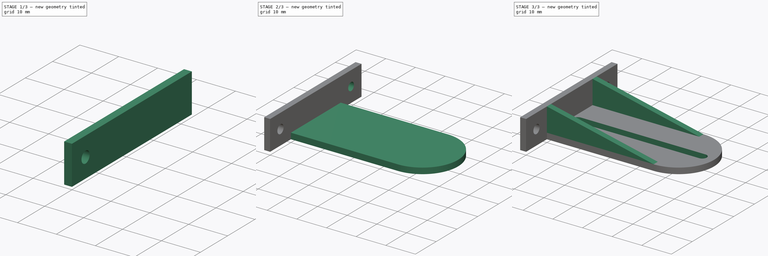
[diagram: build sequence overview — one tinted view per stage of 3, left to right]
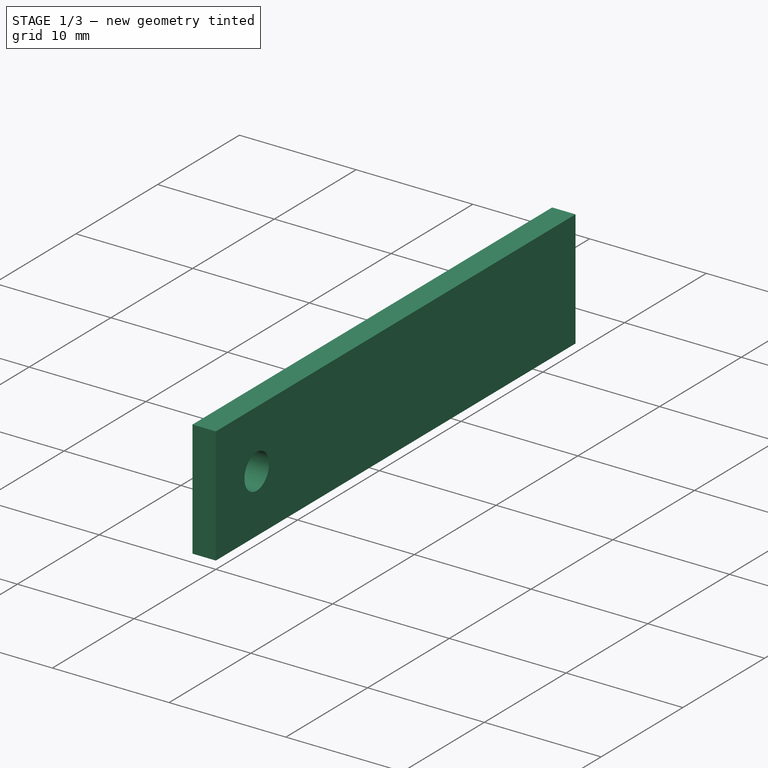
[diagram: stage 1 of 3 — iso view after this stage's code; geometry added in this stage tinted green]
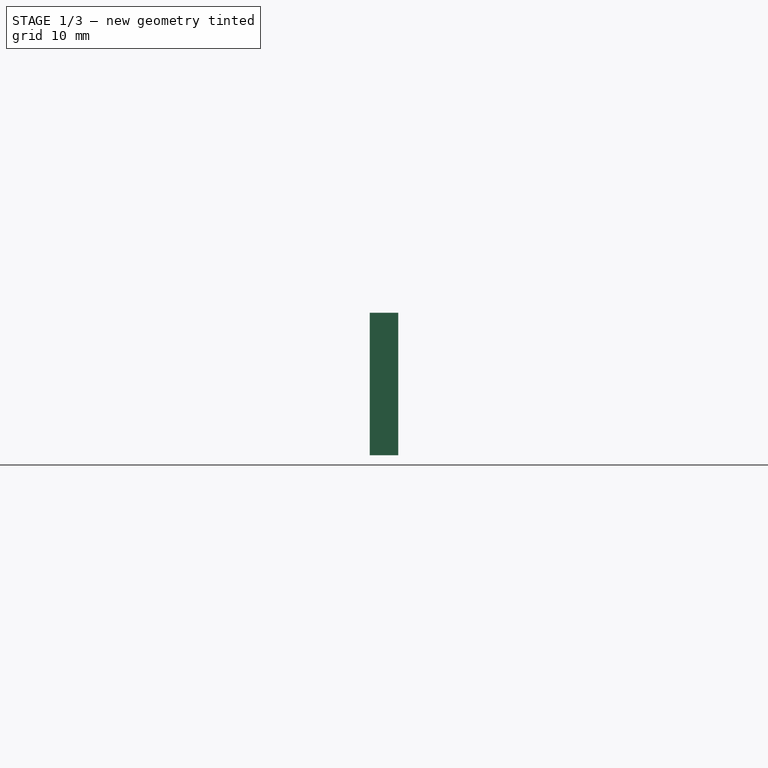
[diagram: stage 1 of 3 — front view after this stage's code; geometry added in this stage tinted green]
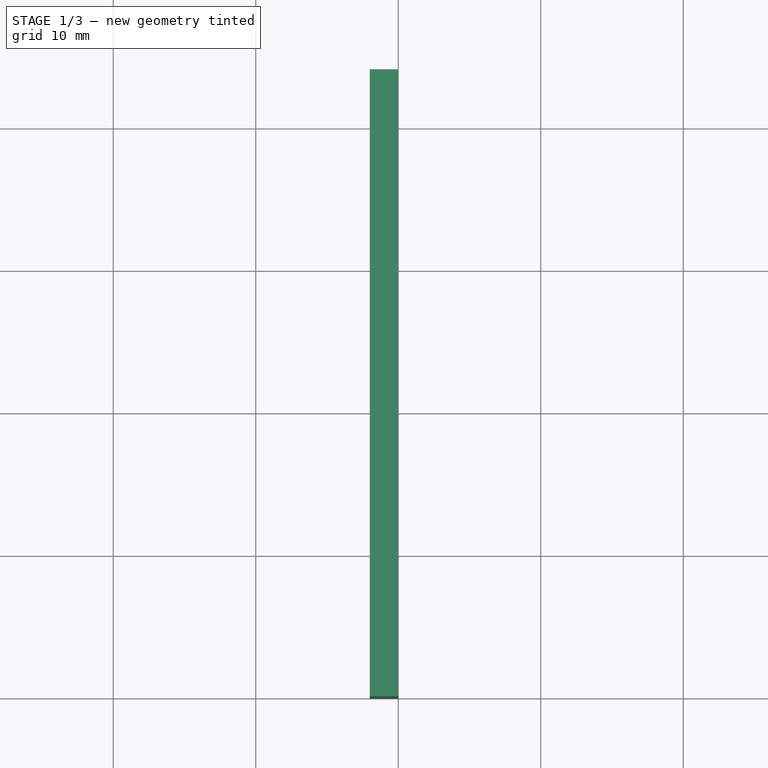
[diagram: stage 1 of 3 — top view after this stage's code; geometry added in this stage tinted green]
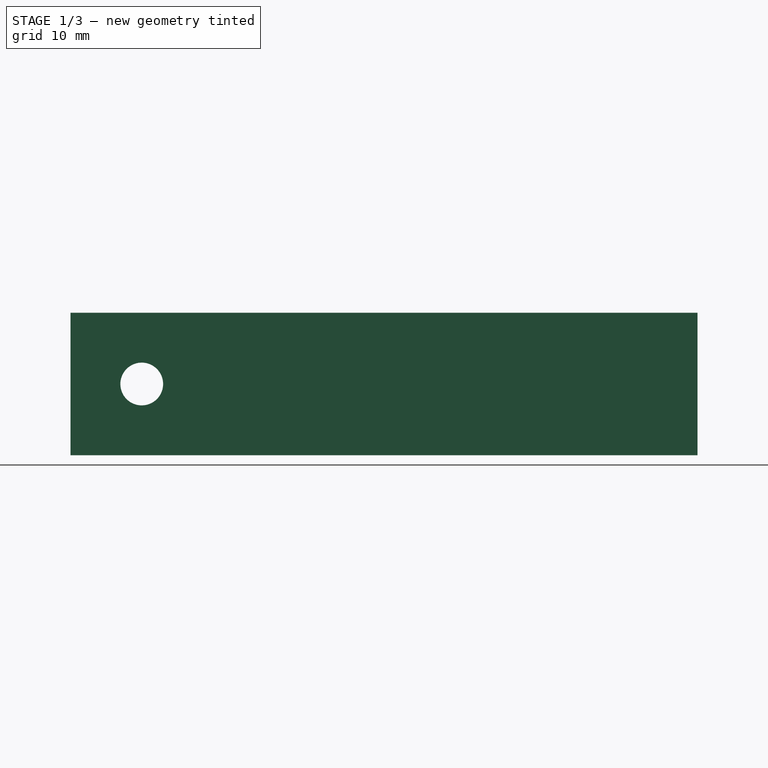
[diagram: stage 1 of 3 — right view after this stage's code; geometry added in this stage tinted green]
FCSTD DOCUMENT  (FreeCAD 0.17R13541 (Git))
Label: PowerBottomBracket
License: All rights reserved
LicenseURL: http://en.wikipedia.org/wiki/All_rights_reserved
objects: Sketcher::SketchObject×8, PartDesign::Pad×4, PartDesign::Pocket×4, PartDesign::Body×1
note: 25 computed .brp shape members not serialized (recipe doc carries the construction recipe); baked Part::Feature solids carry a one-line shape summary decoded from their .brp

FEATURE [Sketcher::SketchObject] Sketch
  MapMode = 5
  Placement = pos=(0,0,0) rot=(0.57735,0.57735,0.57735;2.0944rad)
  Support = -> [YZ_Plane001]
  sketch-geometry (4):
    g0: LineSegment StartX=12 StartY=10 StartZ=0 EndX=-10 EndY=10 EndZ=0
    g1: LineSegment StartX=-10 StartY=10 StartZ=0 EndX=-10 EndY=0 EndZ=0
    g2: LineSegment StartX=-10 StartY=0 StartZ=0 EndX=12 EndY=0 EndZ=0
    g3: LineSegment StartX=12 StartY=0 StartZ=0 EndX=12 EndY=10 EndZ=0
  constraints (11):
    c: Coincident(g0,g1)
    c: Coincident(g1,g2)
    c: Coincident(g2,g3)
    c: Coincident(g3,g0)
    c: Horizontal(g0)
    c: Horizontal(g2)
    c: Vertical(g1)
    c: Vertical(g3)
    c: Distance(g0) = 22
    c: DistanceX(g1) = -10
    c: DistanceY(g1) = 0
FEATURE [PartDesign::Pad] Pad  label="Rail Mount 1"
  Length = 2
  Length2 = 100
  Placement = pos=(0,0,0) rot=(0.57735,0.57735,0.57735;2.0944rad)
  Profile = -> Sketch
  Reversed = true
  Type = 0
FEATURE [Sketcher::SketchObject] Sketch001
  MapMode = 5
  Placement = pos=(0,0,0) rot=(0.57735,0.57735,0.57735;2.0944rad)
  Support = -> [YZ_Plane001]
  sketch-geometry (3):
    g0: LineSegment [constr] StartX=0 StartY=0 StartZ=0 EndX=-10 EndY=10 EndZ=0
    g1: LineSegment [constr] StartX=0 StartY=10 StartZ=0 EndX=-10 EndY=0 EndZ=0
    g2: Circle CenterX=-5 CenterY=5 CenterZ=0 NormalX=0 NormalY=0 NormalZ=1 AngleXU=0 Radius=1.5
  constraints (11):
    c: DistanceX(g1) = 0
    c: DistanceY(g1) = 10
    c: DistanceX(g0) = 0
    c: DistanceY(g0) = 0
    c: DistanceX(g0) = -10
    c: DistanceY(g0) = 10
    c: PointOnObject(g2,g0)
    c: PointOnObject(g2,g1)
    c: Radius(g2) = 1.5
    c: DistanceX(g1) = -10
    c: DistanceY(g1) = 0
FEATURE [PartDesign::Pocket] Pocket  label="Rail Mount hole 1"
  BaseFeature = -> Pad
  Length = 7
  Length2 = 106
  Midplane = true
  Placement = pos=(0,0,0) rot=(0.57735,0.57735,0.57735;2.0944rad)
  Profile = -> Sketch001
  Type = 1
FEATURE [Sketcher::SketchObject] Sketch002
  MapMode = 5
  Placement = pos=(0,0,0) rot=(0.57735,0.57735,0.57735;2.0944rad)
  Support = -> [YZ_Plane001]
  sketch-geometry (4):
    g0: LineSegment StartX=34 StartY=10 StartZ=0 EndX=12 EndY=10 EndZ=0
    g1: LineSegment StartX=12 StartY=10 StartZ=0 EndX=12 EndY=0 EndZ=0
    g2: LineSegment StartX=12 StartY=0 StartZ=0 EndX=34 EndY=0 EndZ=0
    g3: LineSegment StartX=34 StartY=0 StartZ=0 EndX=34 EndY=10 EndZ=0
  constraints (11):
    c: Coincident(g0,g1)
    c: Coincident(g1,g2)
    c: Coincident(g2,g3)
    c: Coincident(g3,g0)
    c: Horizontal(g0)
    c: Horizontal(g2)
    c: Vertical(g1)
    c: Vertical(g3)
    c: Distance(g0) = 22
    c: DistanceX(g1) = 12
    c: DistanceY(g1) = 0
FEATURE [PartDesign::Pad] Pad001  label="Rail Mount 2"
  BaseFeature = -> Pocket
  Length = 2
  Length2 = 100
  Placement = pos=(0,0,0) rot=(0.57735,0.57735,0.57735;2.0944rad)
  Profile = -> Sketch002
  Reversed = true
  Type = 0
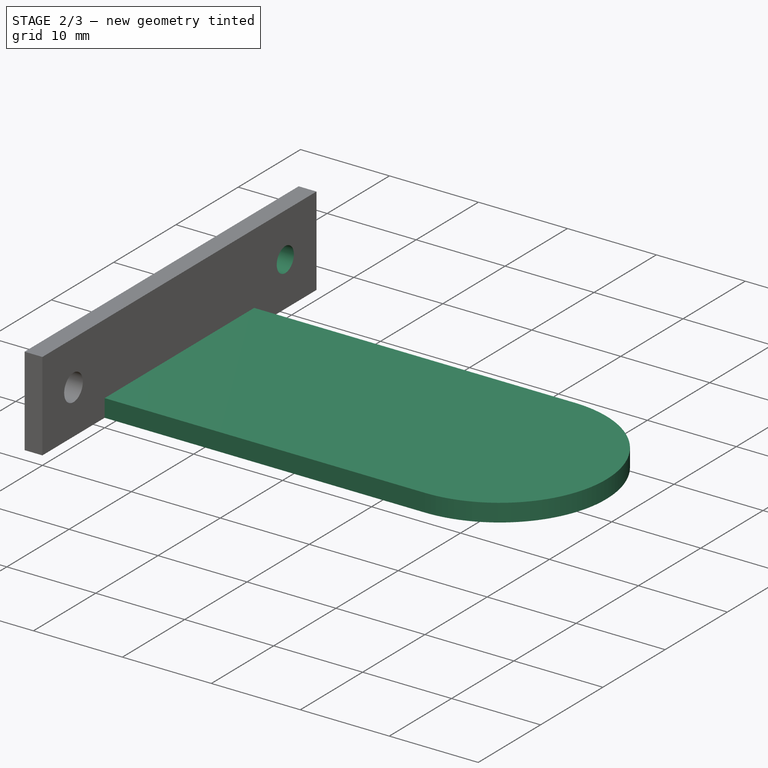
[diagram: stage 2 of 3 — iso view after this stage's code; geometry added in this stage tinted green]
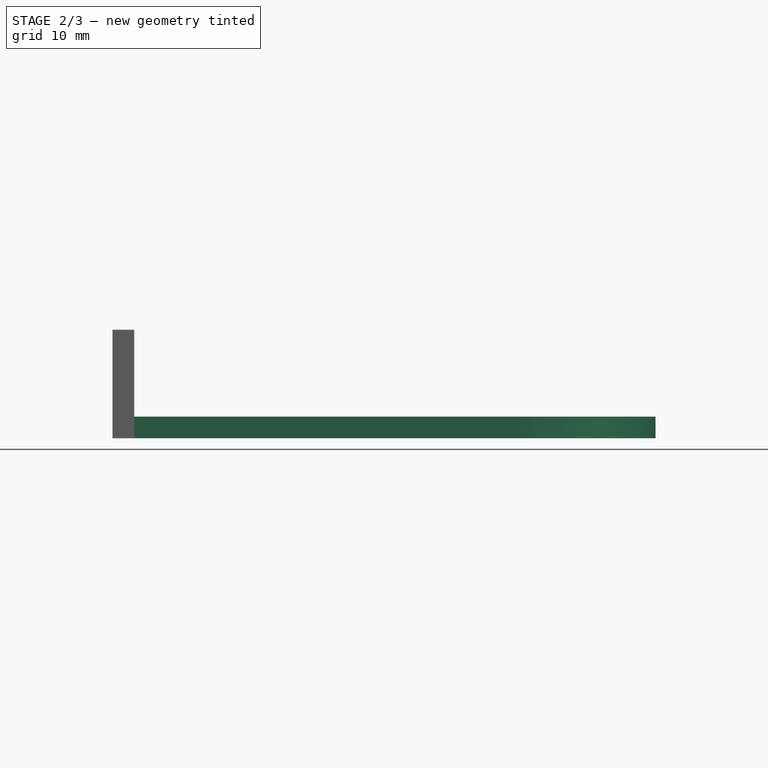
[diagram: stage 2 of 3 — front view after this stage's code; geometry added in this stage tinted green]
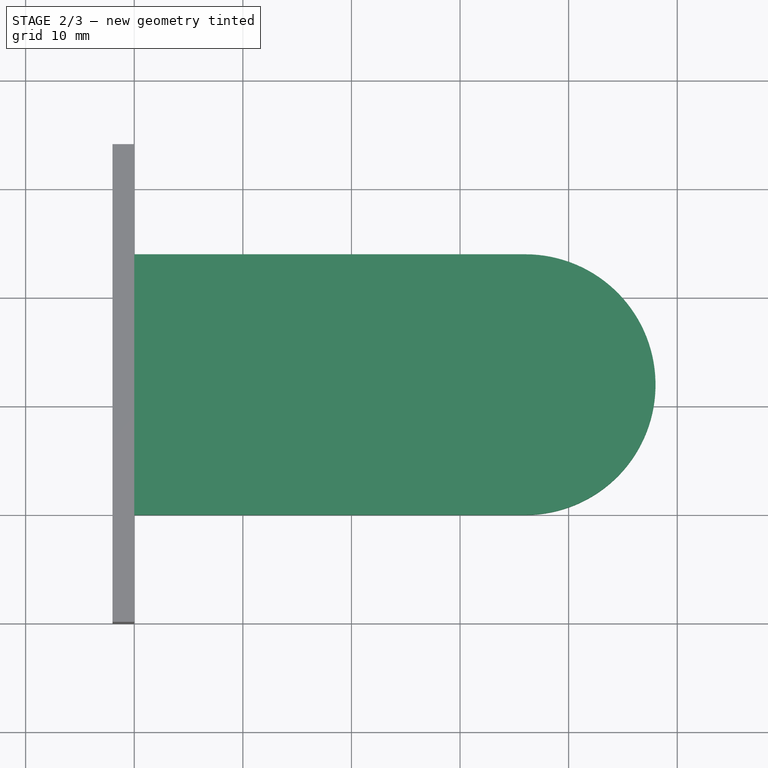
[diagram: stage 2 of 3 — top view after this stage's code; geometry added in this stage tinted green]
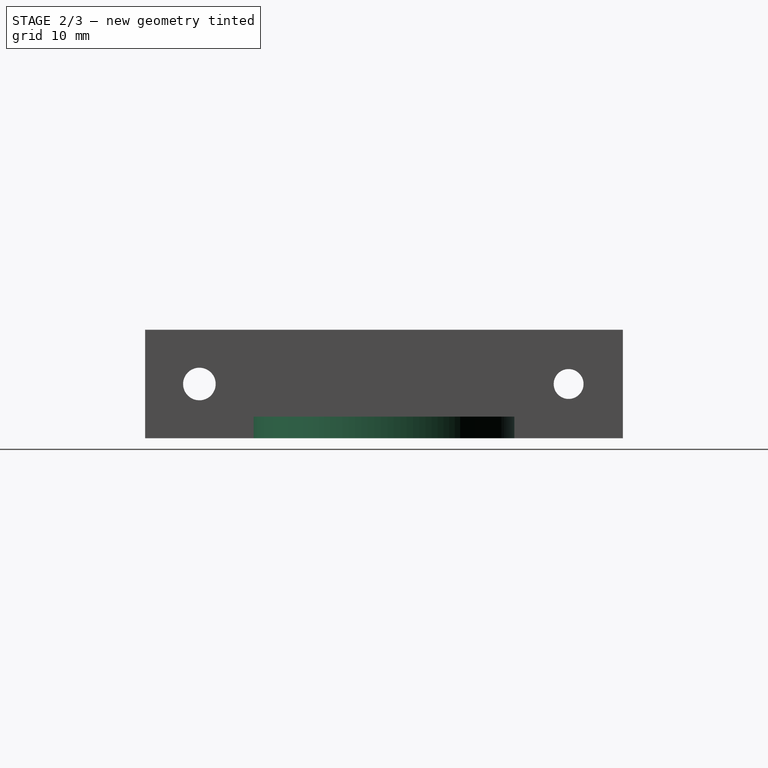
[diagram: stage 2 of 3 — right view after this stage's code; geometry added in this stage tinted green]
FEATURE [Sketcher::SketchObject] Sketch003
  MapMode = 5
  Placement = pos=(0,0,0) rot=(0.57735,0.57735,0.57735;2.0944rad)
  Support = -> [YZ_Plane001]
  sketch-geometry (3):
    g0: LineSegment [constr] StartX=34 StartY=0 StartZ=0 EndX=24 EndY=10 EndZ=0
    g1: LineSegment [constr] StartX=34 StartY=10 StartZ=0 EndX=24 EndY=0 EndZ=0
    g2: Circle CenterX=29 CenterY=5 CenterZ=0 NormalX=0 NormalY=0 NormalZ=1 AngleXU=0 Radius=1.375
  constraints (11):
    c: DistanceX(g1) = 34
    c: DistanceY(g1) = 10
    c: DistanceX(g0) = 34
    c: DistanceY(g0) = 0
    c: DistanceX(g0) = 24
    c: DistanceY(g0) = 10
    c: PointOnObject(g2,g0)
    c: PointOnObject(g2,g1)
    c: Radius(g2) = 1.375
    c: DistanceX(g1) = 24
    c: DistanceY(g1) = 0
FEATURE [PartDesign::Pocket] Pocket001  label="Rail Mount hole 2"
  BaseFeature = -> Pad001
  Length = 5
  Length2 = 100
  Placement = pos=(0,0,0) rot=(0.57735,0.57735,0.57735;2.0944rad)
  Profile = -> Sketch003
  Type = 1
FEATURE [Sketcher::SketchObject] Sketch004
  MapMode = 5
  Support = -> [XY_Plane001]
  sketch-geometry (4):
    g0: ArcOfCircle CenterX=36 CenterY=12 CenterZ=0 NormalX=0 NormalY=0 NormalZ=1 AngleXU=0 Radius=12 StartAngle=4.71239 EndAngle=7.85398
    g1: LineSegment StartX=36 StartY=24 StartZ=0 EndX=-2 EndY=24 EndZ=0
    g2: LineSegment StartX=-2 StartY=24 StartZ=0 EndX=-2 EndY=0 EndZ=0
    g3: LineSegment StartX=36 StartY=0 StartZ=0 EndX=-2 EndY=0 EndZ=0
  constraints (13):
    c: Distance(g1) = 38
    c: Equal(g1,g3)
    c: Coincident(g3,g0)
    c: Coincident(g1,g0)
    c: Coincident(g1,g2)
    c: Vertical(g2)
    c: Coincident(g2,g3)
    c: Horizontal(g1)
    c: Horizontal(g3)
    c: Radius(g0) = 12
    c: DistanceX(g1) = -2
    c: DistanceY(g1) = 24
    c: DistanceX(g0) = 36
FEATURE [PartDesign::Pad] Pad002  label="PS Mount"
  BaseFeature = -> Pocket001
  Length = 2
  Length2 = 100
  Placement = pos=(0,0,0) rot=(0.57735,0.57735,0.57735;2.0944rad)
  Profile = -> Sketch004
  Type = 0
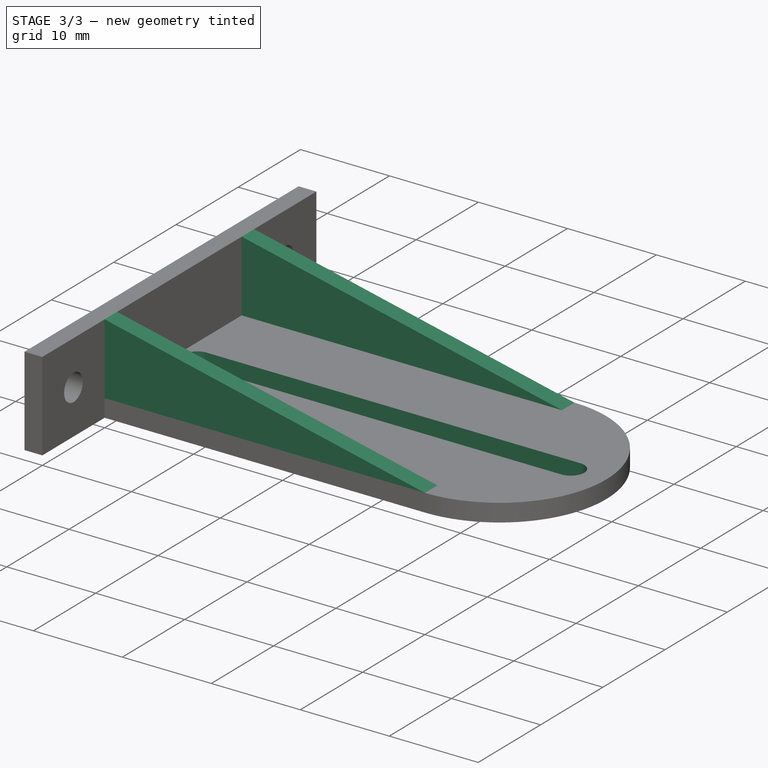
[diagram: stage 3 of 3 — iso view after this stage's code; geometry added in this stage tinted green]
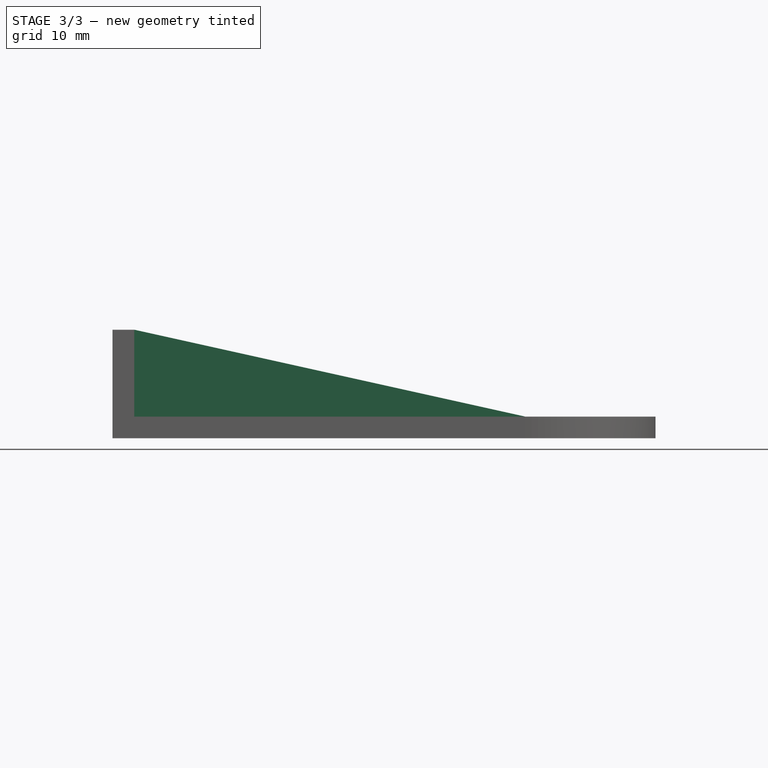
[diagram: stage 3 of 3 — front view after this stage's code; geometry added in this stage tinted green]
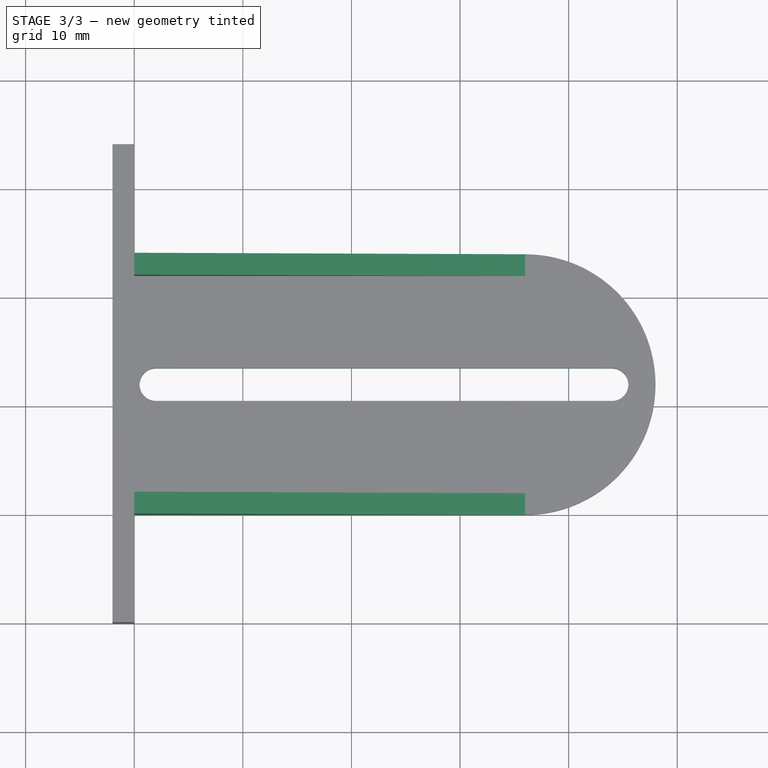
[diagram: stage 3 of 3 — top view after this stage's code; geometry added in this stage tinted green]
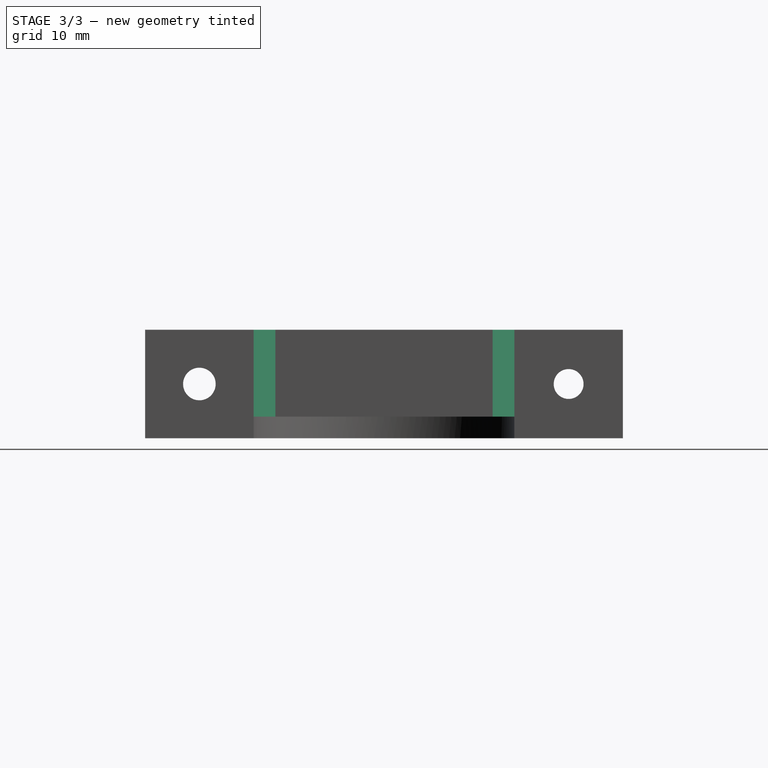
[diagram: stage 3 of 3 — right view after this stage's code; geometry added in this stage tinted green]
FEATURE [Sketcher::SketchObject] Sketch005
  MapMode = 5
  Support = -> [XY_Plane001]
  sketch-geometry (4):
    g0: ArcOfCircle CenterX=2 CenterY=12 CenterZ=0 NormalX=0 NormalY=0 NormalZ=1 AngleXU=0 Radius=1.5 StartAngle=1.5708 EndAngle=4.71239
    g1: ArcOfCircle CenterX=44 CenterY=12 CenterZ=0 NormalX=0 NormalY=0 NormalZ=1 AngleXU=0 Radius=1.5 StartAngle=4.71239 EndAngle=7.85398
    g2: LineSegment StartX=2 StartY=10.5 StartZ=0 EndX=44 EndY=10.5 EndZ=0
    g3: LineSegment StartX=2 StartY=13.5 StartZ=0 EndX=44 EndY=13.5 EndZ=0
  constraints (10):
    c: Tangent(g0,g3) = 1.5708
    c: Tangent(g0,g2) = -1.5708
    c: Tangent(g2,g1) = -1.5708
    c: Tangent(g3,g1) = 1.5708
    c: Horizontal(g2)
    c: Equal(g0,g1)
    c: DistanceX(g0) = 2
    c: DistanceY(g0) = 10.5
    c: Distance(g2) = 42
    c: Radius(g0) = 1.5
FEATURE [PartDesign::Pocket] Pocket002  label="PS Mount hole"
  BaseFeature = -> Pad002
  Length = 5
  Length2 = 100
  Placement = pos=(0,0,0) rot=(0.57735,0.57735,0.57735;2.0944rad)
  Profile = -> Sketch005
  Reversed = true
  Type = 1
FEATURE [Sketcher::SketchObject] Sketch006
  MapMode = 5
  Placement = pos=(0,0,0) rot=(1,0,0;1.5708rad)
  Support = -> [XZ_Plane001]
  sketch-geometry (3):
    g0: LineSegment StartX=0 StartY=10 StartZ=0 EndX=36 EndY=2 EndZ=0
    g1: LineSegment StartX=0 StartY=2 StartZ=0 EndX=0 EndY=10 EndZ=0
    g2: LineSegment StartX=36 StartY=2 StartZ=0 EndX=0 EndY=2 EndZ=0
  constraints (9):
    c: Vertical(g1)
    c: Distance(g1) = 8
    c: Horizontal(g2)
    c: Distance(g2) = 36
    c: DistanceX(g1) = 0
    c: DistanceY(g1) = 10
    c: DistanceX(g0) = 36
    c: DistanceY(g0) = 2
    c: Coincident(g0,g2)
FEATURE [PartDesign::Pad] Pad003  label="Support"
  BaseFeature = -> Pocket002
  Length = 24
  Length2 = 100
  Placement = pos=(0,0,0) rot=(0.57735,0.57735,0.57735;2.0944rad)
  Profile = -> Sketch006
  Reversed = true
  Type = 0
FEATURE [Sketcher::SketchObject] Sketch007
  MapMode = 5
  Placement = pos=(0,0,0) rot=(0.57735,0.57735,0.57735;2.0944rad)
  Support = -> [YZ_Plane001]
  sketch-geometry (4):
    g0: LineSegment StartX=2 StartY=10 StartZ=0 EndX=22 EndY=10 EndZ=0
    g1: LineSegment StartX=22 StartY=10 StartZ=0 EndX=22 EndY=2 EndZ=0
    g2: LineSegment StartX=22 StartY=2 StartZ=0 EndX=2 EndY=2 EndZ=0
    g3: LineSegment StartX=2 StartY=2 StartZ=0 EndX=2 EndY=10 EndZ=0
  constraints (12):
    c: Coincident(g0,g1)
    c: Coincident(g1,g2)
    c: Coincident(g2,g3)
    c: Coincident(g3,g0)
    c: Horizontal(g0)
    c: Horizontal(g2)
    c: Vertical(g1)
    c: Vertical(g3)
    c: DistanceX(g2) = 2
    c: DistanceY(g2) = 2
    c: Distance(g0) = 20
    c: Distance(g1) = 8
FEATURE [PartDesign::Pocket] Pocket003
  BaseFeature = -> Pad003
  Length = 0
  Length2 = 38
  Offset = -36
  Placement = pos=(0,0,0) rot=(0.57735,0.57735,0.57735;2.0944rad)
  Profile = -> Sketch007
  Reversed = true
  Type = 1
FEATURE [PartDesign::Body] Body
  Group = -> [Sketch,Pad,Sketch001,Pocket,Sketch002,Pad001,Sketch003,Pocket001,Sketch004,Pad002,Sketch005,Pocket002,Sketch006,Pad003,Sketch007,Pocket003]
  Origin = -> Origin001
  Tip = -> Pocket003
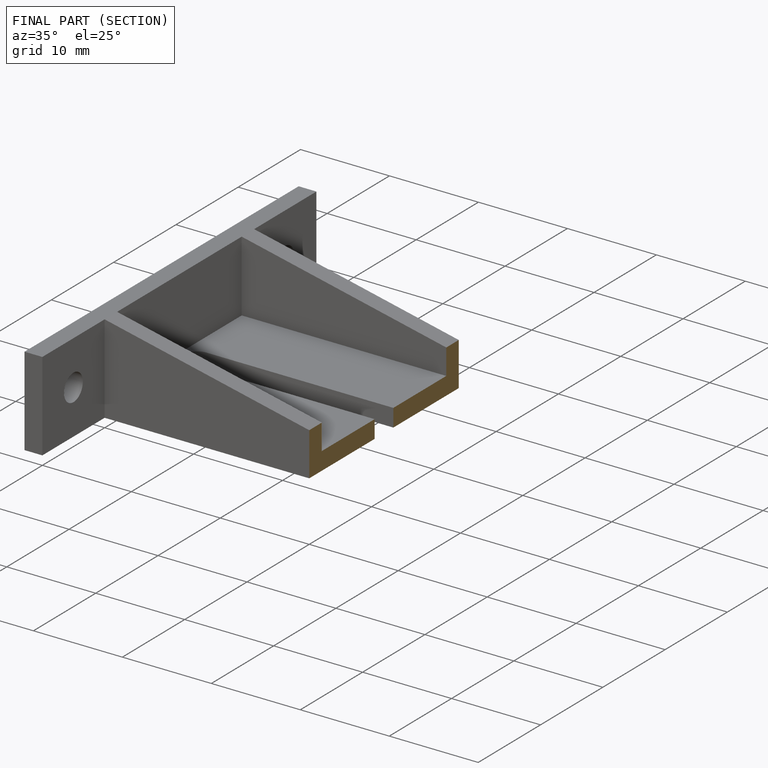
[diagram: finished part — half-section view (interior)]
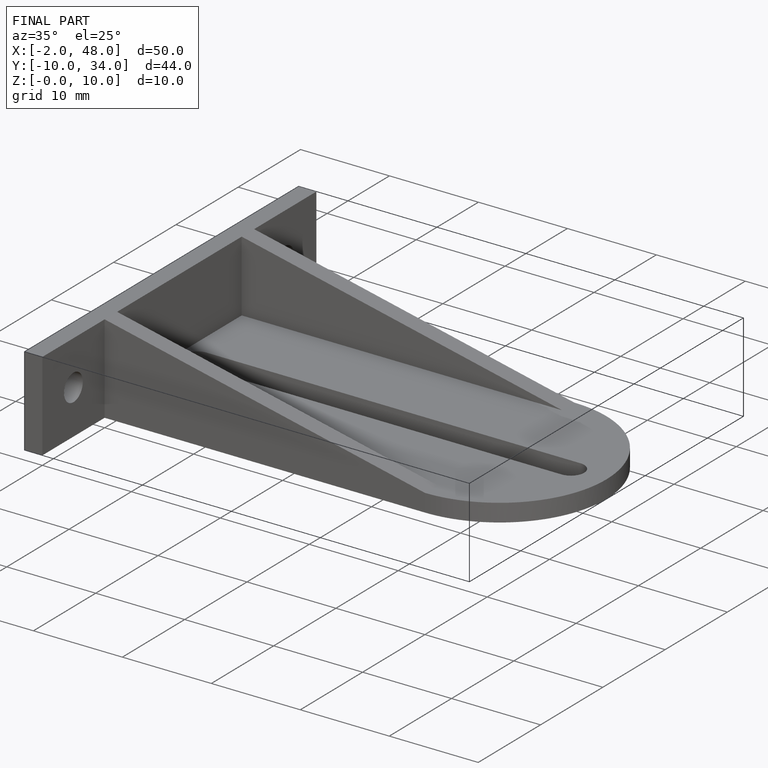
[diagram: finished part — iso view with bounding-box wireframe]
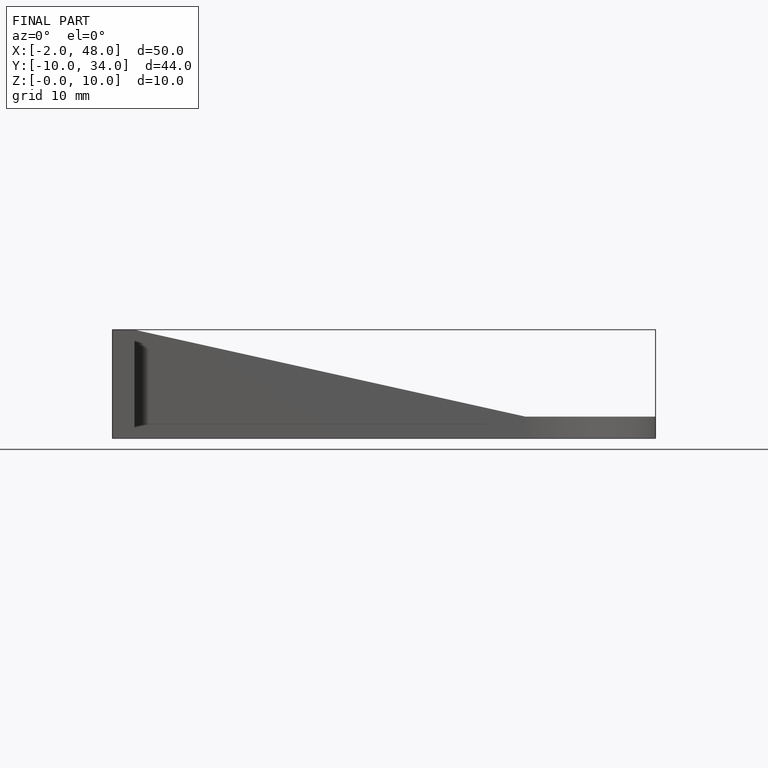
[diagram: finished part — front view with bounding-box wireframe]
